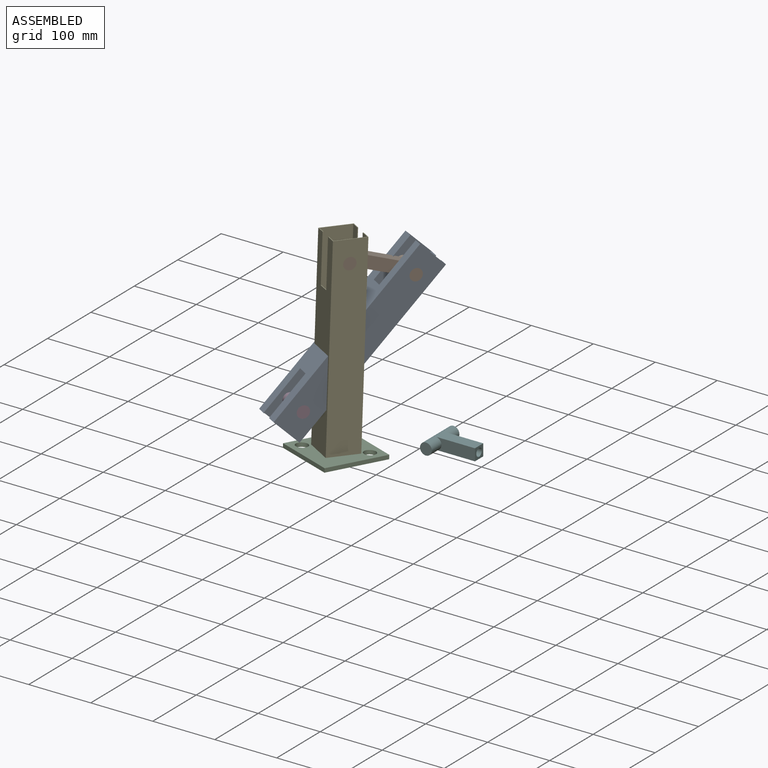
[diagram: assembled view]
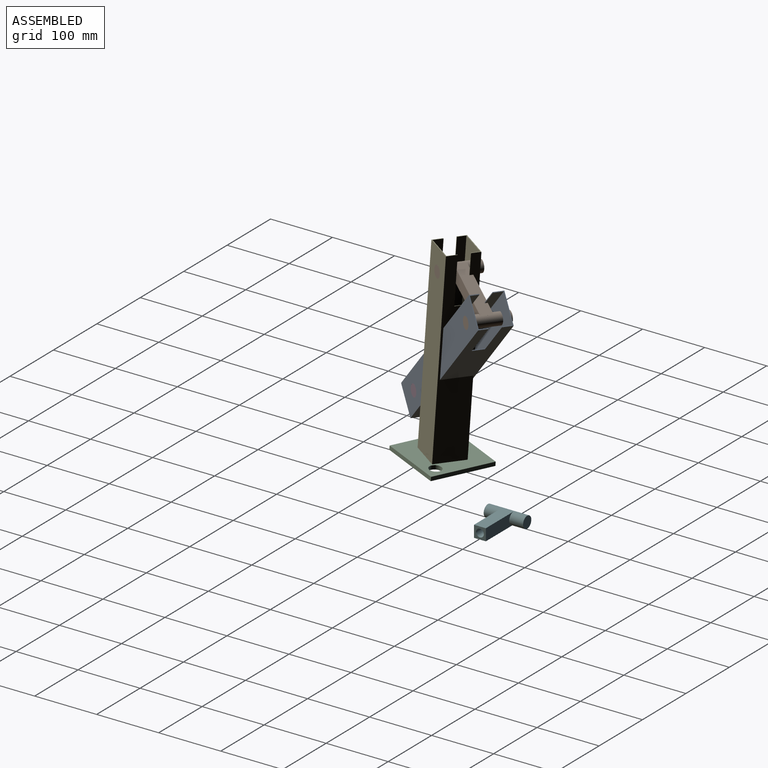
[diagram: assembled view, second angle]
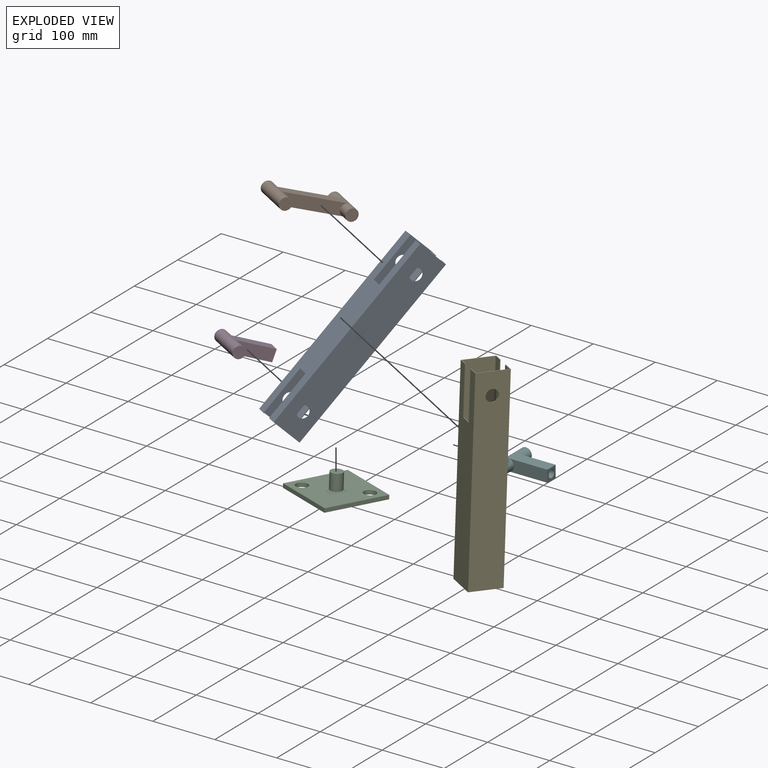
[diagram: exploded view]
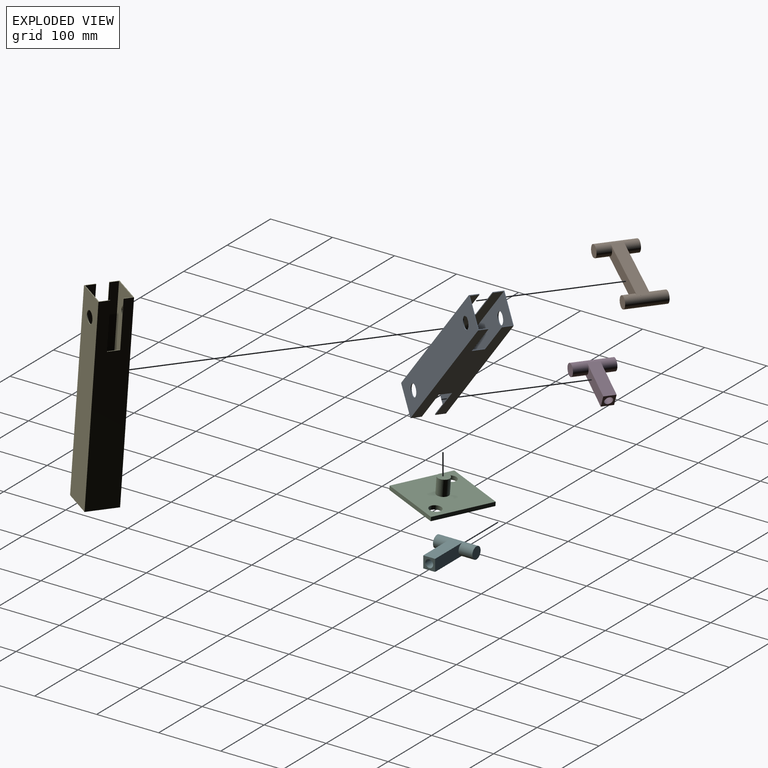
[diagram: exploded view, second angle]
ASSEMBLY  parts=6 mates=4
PART A: 28 faces, bbox 304.8x50.8x50.8 mm
  f0: plane 304.8x50.8mm, normal (0,-1,0), area 12582.3mm2, adj f1,f2,f7,f8,f10,f11,f12,f13
  f1: plane 50.8x15.47mm, normal (-1,0,0), area 100.6mm2, adj f0,f4,f5,f6,f8,f9,f22,f24
  f2: plane 50.8x16.86mm, normal (1,0,0), area 104.1mm2, adj f0,f4,f5,f6,f8,f9,f13,f17
  f3: plane 304.8x48.26mm, normal (0,0,-1), area 14139.6mm2, adj f4,f9,f10,f11,f19,f27
  f4: plane 304.8x48.26mm, normal (0,-1,0), area 11808.1mm2, adj f1,f2,f3,f5,f10,f11,f15,f16
  f5: plane 304.8x48.26mm, normal (0,0,1), area 14139.6mm2, adj f1,f2,f4,f9,f18,f26
  f6: plane 304.8x50.8mm, normal (0,1,0), area 12582.3mm2, adj f1,f2,f7,f8,f10,f11,f15,f16
  f7: plane 304.8x50.8mm, normal (0,0,1), area 14913.8mm2, adj f0,f6,f10,f11,f19,f27
  f8: plane 304.8x50.8mm, normal (0,0,-1), area 14913.8mm2, adj f0,f1,f2,f6,f18,f26
  f9: plane 304.8x48.26mm, normal (0,1,0), area 11808.1mm2, adj f1,f2,f3,f5,f10,f11,f12,f13
  f10: plane 50.8x14.89mm, normal (1,0,0), area 99.1mm2, adj f0,f3,f4,f6,f7,f9,f12,f16
  f11: plane 50.8x16.28mm, normal (-1,0,0), area 102.6mm2, adj f0,f3,f4,f6,f7,f9,f20,f25
  f12: plane 76.11x1.27mm, normal (0,0,-1), area 96.7mm2, adj f0,f9,f10,f14
  f13: plane 76.11x1.27mm, normal (0,0,1), area 96.7mm2, adj f0,f2,f9,f14
  f14: plane 19.05x1.27mm, normal (1,0,0), area 24.2mm2, adj f0,f9,f12,f13
  f15: plane 19.05x1.27mm, normal (1,0,0), area 24.2mm2, adj f4,f6,f16,f17
  f16: plane 76.11x1.27mm, normal (0,0,-1), area 96.7mm2, adj f4,f6,f10,f15
  f17: plane 76.11x1.27mm, normal (0,0,1), area 96.7mm2, adj f2,f4,f6,f15
  f18: cylinder r=9.53mm len=19.05mm, axis (0,0,-1), area 76mm2, adj f5,f8
  f19: cylinder r=9.53mm len=19.05mm, axis (0,0,-1), area 76mm2, adj f3,f7
  f20: plane 76.2x1.27mm, normal (0,0,-1), area 96.8mm2, adj f0,f9,f11,f21
  f21: plane 19.05x1.27mm, normal (-1,0,0), area 24.2mm2, adj f0,f9,f20,f22
  f22: plane 76.2x1.27mm, normal (0,0,1), area 96.8mm2, adj f0,f1,f9,f21
  f23: plane 19.05x1.27mm, normal (-1,0,0), area 24.2mm2, adj f4,f6,f24,f25
  f24: plane 76.2x1.27mm, normal (0,0,1), area 96.8mm2, adj f1,f4,f6,f23
  f25: plane 76.2x1.27mm, normal (0,0,-1), area 96.8mm2, adj f4,f6,f11,f23
  f26: cylinder r=9.53mm len=19.05mm, axis (0,0,1), area 76mm2, adj f5,f8
  f27: cylinder r=9.53mm len=19.05mm, axis (0,0,1), area 76mm2, adj f3,f7
PART B: 19 faces, bbox 120.3x66.7x19.1 mm
  f0: plane 0.37x0.01mm, normal (0,1,0), area 0mm2, adj f4,f12,f13
  f1: plane 101.23x19.05mm, normal (0,1,0), area 1643.5mm2, adj f6,f10,f12,f13
  f2: plane 0.37x0.01mm, normal (0,-1,0), area 0mm2, adj f4,f12,f13
  f3: plane 101.23x19.05mm, normal (0,-1,0), area 1643.5mm2, adj f6,f10,f12,f13
  f4: plane 19.05x0.01mm, normal (1,0,0), area 0.1mm2, adj f0,f2,f12,f13
  f5: plane 19.05x0.01mm, normal (1,0,0), area 0.1mm2, adj f9,f10,f11,f13
  f6: cylinder r=9.53mm len=63.5mm, axis (0,1,0), area 3230.3mm2, adj f1,f3,f7,f8,f10,f12
  f7: plane 19.05x19.05mm, normal (0,-1,0), area 285mm2, adj f6
  f8: plane 19.05x19.05mm, normal (0,1,0), area 285mm2, adj f6
  f9: plane 0.37x0.01mm, normal (0,1,0), area 0mm2, adj f5,f10,f13
  f10: plane 101.6x19.05mm, normal (0,0,1), area 1935.5mm2, adj f1,f3,f5,f6,f9,f11
  f11: plane 0.37x0.01mm, normal (0,-1,0), area 0mm2, adj f5,f10,f13
  f12: plane 101.6x19.05mm, normal (0,0,-1), area 1935.5mm2, adj f0,f1,f2,f3,f4,f6
  f13: cylinder r=9.53mm len=63.5mm, axis (0,1,0), area 3216.3mm2, adj f0,f1,f2,f3,f4,f5,f9,f11
  f14: plane 19.05x19.05mm, normal (0,-1,0), area 285mm2, adj f13
  f15: plane 19.05x19.05mm, normal (0,1,0), area 285mm2, adj f13
  f16: cylinder r=9.53mm len=12.7mm, axis (0,1,0), area 135.3mm2, adj f18
  f17: plane 12.7x12.7mm, normal (1,0,0), area 126.7mm2, adj f18
  f18: cylinder r=6.35mm len=17.93mm, axis (1,0,0), area 665.4mm2, adj f16,f17
PART C: 10 faces, bbox 101.6x101.6x31.8 mm
  f0: plane 101.6x6.35mm, normal (1,0,0), area 645.2mm2, adj f1,f4,f6,f7
  f1: plane 101.6x6.35mm, normal (0,1,0), area 645.2mm2, adj f0,f2,f6,f7
  f2: plane 101.6x6.35mm, normal (-1,0,0), area 645.2mm2, adj f1,f4,f6,f7
  f3: cylinder r=9.53mm len=19.05mm, axis (0,0,-1), area 380mm2, adj f6,f7
  f4: plane 101.6x6.35mm, normal (0,-1,0), area 645.2mm2, adj f0,f2,f6,f7
  f5: cylinder r=9.53mm len=19.05mm, axis (0,0,-1), area 380mm2, adj f6,f7
  f6: plane 101.6x101.6mm, normal (0,0,1), area 9459.8mm2, adj f0,f1,f2,f3,f4,f5,f8
  f7: plane 101.6x101.6mm, normal (0,0,-1), area 9752.5mm2, adj f0,f1,f2,f3,f4,f5
  f8: cylinder r=9.65mm len=25.4mm, axis (0,0,-1), area 1540.4mm2, adj f6,f9
  f9: plane 19.3x19.3mm, normal (0,0,1), area 292.7mm2, adj f8
PART D: 10 faces, bbox 73x63.5x19.1 mm
  f0: cylinder r=9.53mm len=63.5mm, axis (0,1,0), area 3230.3mm2, adj f1,f2,f3,f4,f5,f6
  f1: plane 19.05x19.05mm, normal (0,-1,0), area 285mm2, adj f0
  f2: plane 19.05x19.05mm, normal (0,1,0), area 285mm2, adj f0
  f3: plane 63.5x19.05mm, normal (0,1,0), area 1067.2mm2, adj f0,f4,f6,f7
  f4: plane 63.5x19.05mm, normal (0,0,1), area 1209.7mm2, adj f0,f3,f5,f7
  f5: plane 63.5x19.05mm, normal (0,-1,0), area 1067.2mm2, adj f0,f4,f6,f7
  f6: plane 63.5x19.05mm, normal (0,0,-1), area 1209.7mm2, adj f0,f3,f5,f7
  f7: plane 19.05x19.05mm, normal (1,0,0), area 236.2mm2, adj f3,f4,f5,f6,f8
  f8: cylinder r=6.35mm len=25.4mm, axis (1,0,0), area 1013.4mm2, adj f7,f9
  f9: plane 12.7x12.7mm, normal (1,0,0), area 126.7mm2, adj f8
PART E: 21 faces, bbox 311.2x50.8x50.8 mm
  f0: plane 311.15x50.8mm, normal (0,-1,0), area 14356.4mm2, adj f1,f6,f7,f9,f10,f11,f12,f19
  f1: plane 50.8x16.86mm, normal (1,0,0), area 104.1mm2, adj f0,f3,f4,f5,f7,f8,f11,f15
  f2: plane 304.8x48.26mm, normal (0,0,-1), area 14424.6mm2, adj f3,f8,f9,f17,f20
  f3: plane 304.8x48.26mm, normal (0,-1,0), area 13259.7mm2, adj f1,f2,f4,f9,f13,f14,f15,f20
  f4: plane 304.8x48.26mm, normal (0,0,1), area 14424.6mm2, adj f1,f3,f8,f16,f20
  f5: plane 311.15x50.8mm, normal (0,1,0), area 14356.4mm2, adj f1,f6,f7,f9,f13,f14,f15,f19
  f6: plane 311.15x50.8mm, normal (0,0,1), area 15521.4mm2, adj f0,f5,f9,f17,f19
  f7: plane 311.15x50.8mm, normal (0,0,-1), area 15521.4mm2, adj f0,f1,f5,f16,f19
  f8: plane 304.8x48.26mm, normal (0,1,0), area 13259.7mm2, adj f1,f2,f4,f9,f10,f11,f12,f20
  f9: plane 50.8x14.89mm, normal (1,0,0), area 99.1mm2, adj f0,f2,f3,f5,f6,f8,f10,f14
  f10: plane 76.11x1.27mm, normal (0,0,-1), area 96.7mm2, adj f0,f8,f9,f12
  f11: plane 76.11x1.27mm, normal (0,0,1), area 96.7mm2, adj f0,f1,f8,f12
  f12: plane 19.05x1.27mm, normal (1,0,0), area 24.2mm2, adj f0,f8,f10,f11
  f13: plane 19.05x1.27mm, normal (1,0,0), area 24.2mm2, adj f3,f5,f14,f15
  f14: plane 76.11x1.27mm, normal (0,0,-1), area 96.7mm2, adj f3,f5,f9,f13
  f15: plane 76.11x1.27mm, normal (0,0,1), area 96.7mm2, adj f1,f3,f5,f13
  f16: cylinder r=9.53mm len=19.05mm, axis (0,0,-1), area 76mm2, adj f4,f7
  f17: cylinder r=9.53mm len=19.05mm, axis (0,0,-1), area 76mm2, adj f2,f6
  f18: cylinder r=9.53mm len=19.05mm, axis (1,0,0), area 380mm2, adj f19,f20
  f19: plane 50.8x50.8mm, normal (-1,0,0), area 2295.6mm2, adj f0,f5,f6,f7,f18
  f20: plane 48.26x48.26mm, normal (1,0,0), area 2044mm2, adj f2,f3,f4,f8,f18
PART F: same geometry as D
PLACE A rot(axis=(0.77,0.08,0.63),126.6deg) t=(257.83,37.43,-44.48)mm
PLACE B rot(axis=(0.87,0.47,-0.14),168.6deg) t=(297.15,122.65,182.01)mm
PLACE C rot(axis=(-0.02,-0.04,-1),112.4deg) t=(304.92,100.76,-96.5)mm fixed
PLACE D rot(axis=(0.87,0.47,-0.15),167.6deg) t=(264.77,61.96,-19.77)mm
PLACE E rot(axis=(-0.3,-0.92,-0.24),96.1deg) t=(304.87,101.38,-86.99)mm
PLACE F t=(367.74,249.77,-117.97)mm
MATE revolute D.f0 <-> A.f26  axis (0.84,-0.54,0.04) through (291.46,44.82,-18.4)mm
MATE revolute A.f18 <-> B.f13  axis (0.84,-0.54,0.04) through (374,186.77,149.64)mm
MATE revolute E.f16 <-> B.f6  axis (0.84,-0.54,0.04) through (323.84,105.51,183.38)mm
MATE revolute C.f6 <-> E.f18  axis (-0.01,0.07,1) through (304.9,101.17,-90.16)mm
